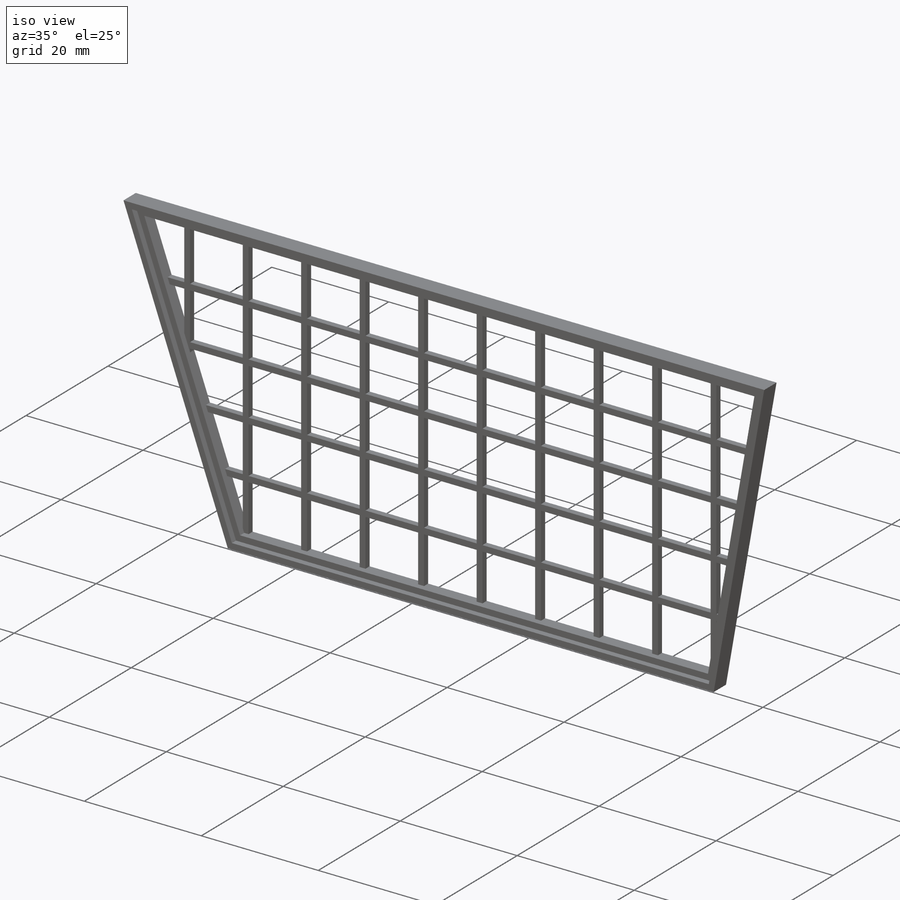
[diagram: iso view]
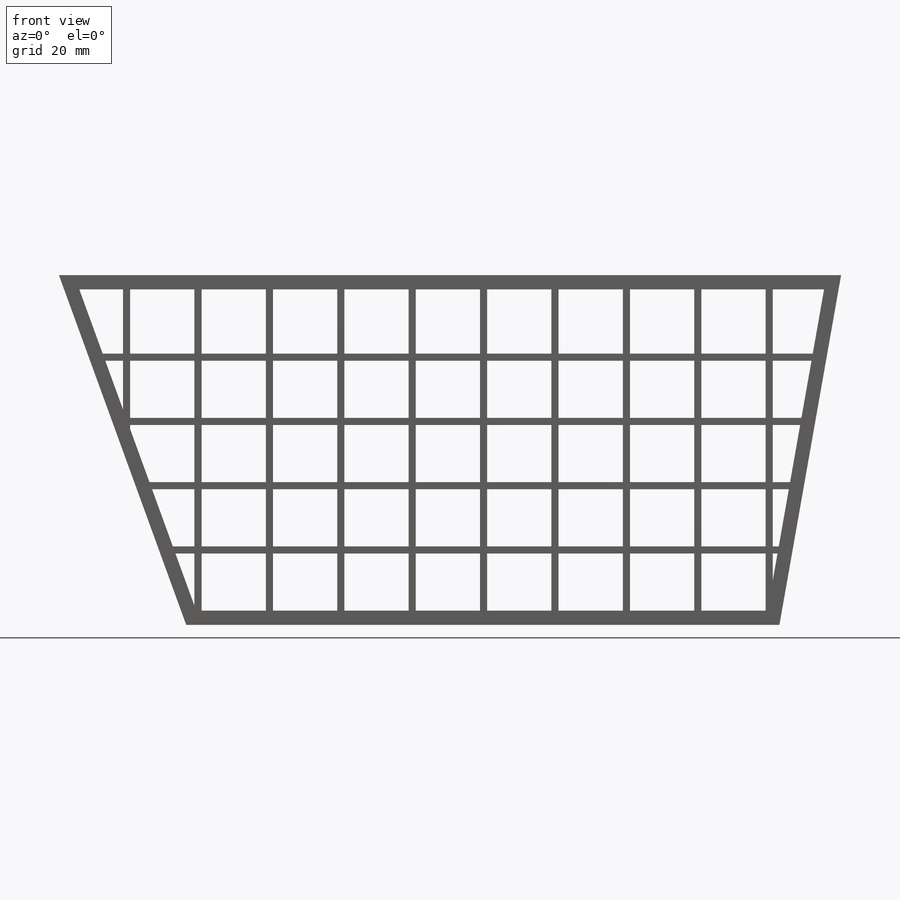
[diagram: front view]
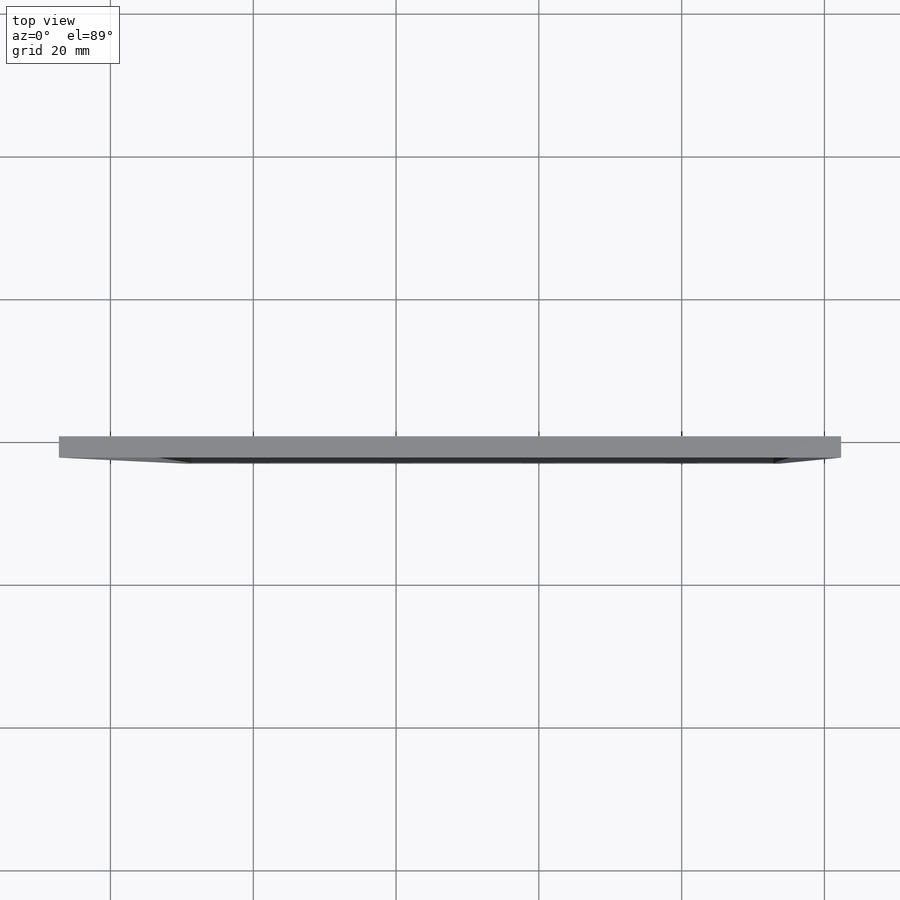
[diagram: top view]
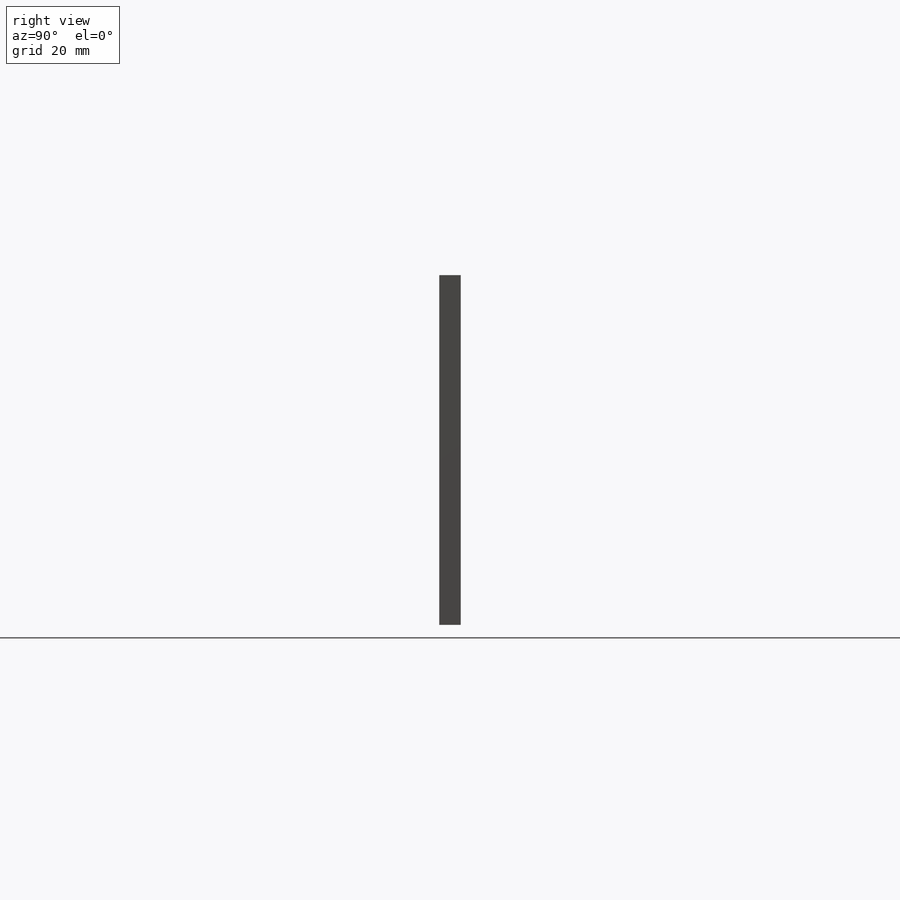
[diagram: right view]
SOLIDWORKS PART (.sldprt)
format: sldprt  version: not decoded by parser v0  size: 5,038,592 bytes
history: native  units: mm
features: sketch x6, plane x3, extrude x3, cut_extrude x2, pattern_linear x2, material x1 (+8 scaffold rows collapsed)
feature tree (25):
  scaffold x8  (default folders/planes/origin — collapsed)
  material  "Matériau <non spécifié>"
  plane  "Plan de face"
  plane  "Plan de dessus"
  plane  "Plan de droite"
  sketch  "Esquisse1"  dims[c1.D1=~49.078595mm c2.D1=110.0deg c2.D2=~70.117056mm c3.D2=100.0deg c3.D3=80.0mm c3.D4=45.0mm c3.D5=2.0mm]
  extrude  "Boss.-Extru.1"  Depth=3mm
  sketch  "Esquisse2"  dims[D1=0.0mm D2=1.0mm]
  cut_extrude  "Enlèv. mat.-Extru.1"  Depth=1mm
  sketch  "Esquisse3"  dims[c1.D1=~14.295332mm c1.D2=45.0mm c2.D1=~14.295332mm c2.D2=45.0mm c2.D4=45.0mm c3.D1=1.0mm c3.D3=1.0mm]
  extrude  "Boss.-Extru.2"  Depth=1mm
  pattern_linear  "Répétition linéaire1"  Count1=10 Count2=1 Spacing1=10mm Spacing2=10mm
  sketch  "Esquisse4"  dims[D1=1.0mm D2=9.0mm]
  extrude  "Boss.-Extru.3"  Depth=1mm
  pattern_linear  "Répétition linéaire2"  Count1=4 Count2=1 Spacing1=9mm Spacing2=10mm
  sketch  "Esquisse6"  dims[D1=0.0mm]
  cut_extrude  "Enlèv. mat.-Extru.2"  [1 undecoded]
  sketch  "Esquisse7"
decode coverage: 11 of 13 modeling features carry decoded parameters
note: ~ marks probable driven/reference dimensions
note: 1 parameter value undecoded
note: suppression state not decoded; provenance and decode notes live in map.json
